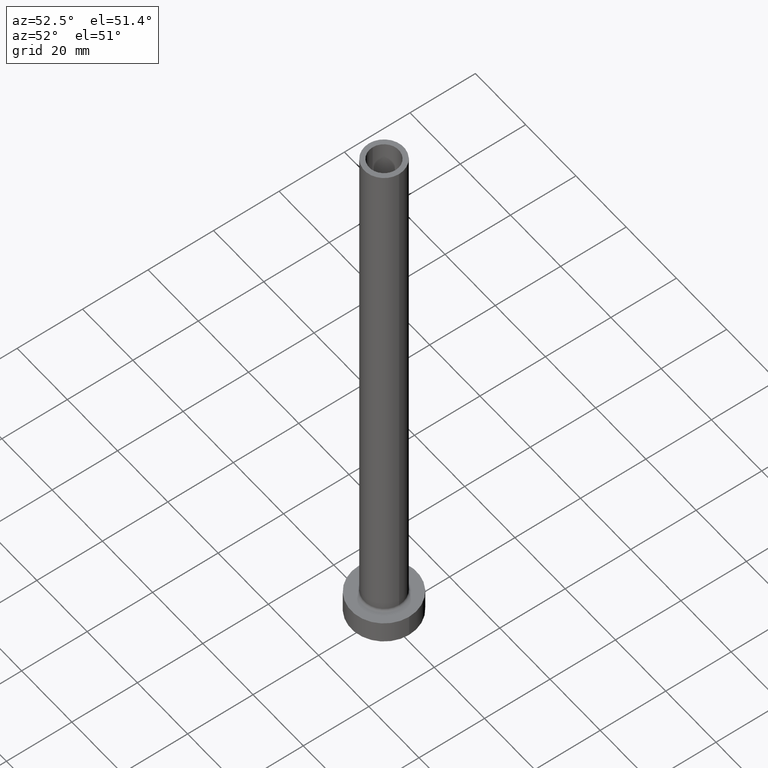
[diagram: clean part render]
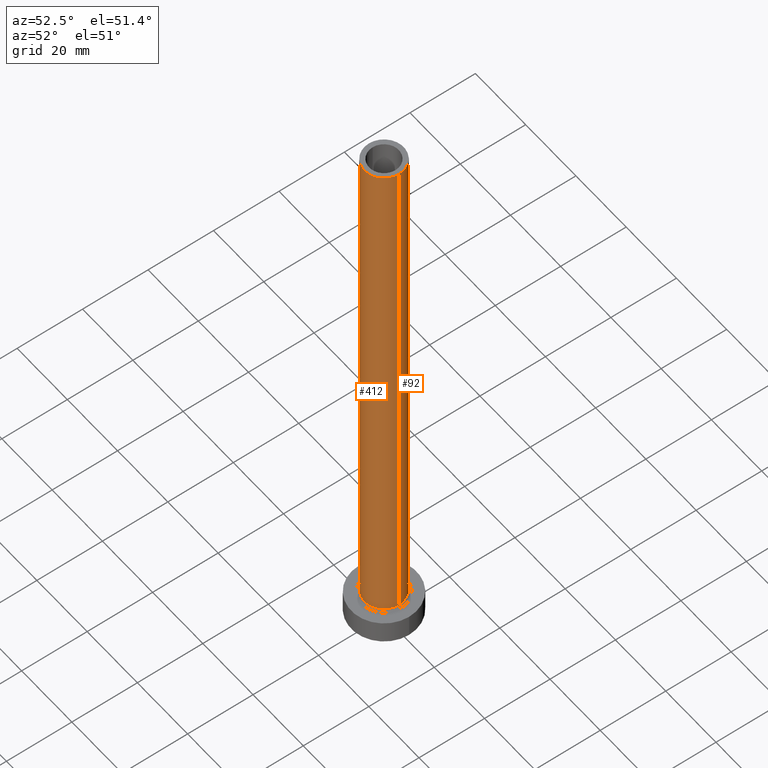
[diagram: same view with one multi-face feature highlighted, each face labeled with its STEP entity id]
A machine part, auxiliary view. The highlighted faces form ONE feature: a constant-radius fillet chain: 2 tangent blend faces with common blend radius 6 mm. The faces share edges in the B-rep.
Their STEP definitions:
[1] entity #92 (Cylinder):
#22 = CARTESIAN_POINT ( 'NONE',  ( 0.000000000000000000, 0.000000000000000000, 175.0000000000000284 ) ) ;
#51 = EDGE_CURVE ( 'NONE', #73, #442, #454, .T. ) ;
#53 = VERTEX_POINT ( 'NONE', #368 ) ;
#56 = EDGE_CURVE ( 'NONE', #73, #197, #424, .T. ) ;
#60 = CYLINDRICAL_SURFACE ( 'NONE', #455, 6.000000000000000888 ) ;
#73 = VERTEX_POINT ( 'NONE', #312 ) ;
#80 = EDGE_LOOP ( 'NONE', ( #432, #449, #377, #398 ) ) ;
#86 = LINE ( 'NONE', #397, #267 ) ;
#92 = ADVANCED_FACE ( 'NONE', ( #395 ), #60, .T. ) ;
#100 = EDGE_CURVE ( 'NONE', #197, #53, #154, .T. ) ;
#138 = CARTESIAN_POINT ( 'NONE',  ( 6.000000000000000888, 7.347880794884119736E-16, 7.700000000000012612 ) ) ;
#140 = VECTOR ( 'NONE', #461, 1000.000000000000000 ) ;
#154 = CIRCLE ( 'NONE', #415, 6.000000000000000888 ) ;
#171 = CARTESIAN_POINT ( 'NONE',  ( 6.000000000000000888, 7.347880794884119736E-16, 175.0000000000000284 ) ) ;
#197 = VERTEX_POINT ( 'NONE', #138 ) ;
#211 = DIRECTION ( 'NONE',  ( -1.000000000000000000, 0.000000000000000000, 0.000000000000000000 ) ) ;
#226 = DIRECTION ( 'NONE',  ( 1.000000000000000000, 0.000000000000000000, 0.000000000000000000 ) ) ;
#227 = DIRECTION ( 'NONE',  ( -0.000000000000000000, -0.000000000000000000, -1.000000000000000000 ) ) ;
#243 = CARTESIAN_POINT ( 'NONE',  ( -6.000000000000000888, 0.000000000000000000, 175.0000000000000284 ) ) ;
#267 = VECTOR ( 'NONE', #227, 1000.000000000000000 ) ;
#272 = DIRECTION ( 'NONE',  ( 0.000000000000000000, 0.000000000000000000, 1.000000000000000000 ) ) ;
#277 = DIRECTION ( 'NONE',  ( -0.000000000000000000, -0.000000000000000000, -1.000000000000000000 ) ) ;
#312 = CARTESIAN_POINT ( 'NONE',  ( 6.000000000000000888, 7.347880794884119736E-16, 175.0000000000000284 ) ) ;
#314 = CARTESIAN_POINT ( 'NONE',  ( 0.000000000000000000, 0.000000000000000000, 7.700000000000012612 ) ) ;
#315 = DIRECTION ( 'NONE',  ( 0.000000000000000000, 0.000000000000000000, 1.000000000000000000 ) ) ;
#337 = AXIS2_PLACEMENT_3D ( 'NONE', #22, #272, #226 ) ;
#364 = EDGE_CURVE ( 'NONE', #442, #53, #86, .T. ) ;
#368 = CARTESIAN_POINT ( 'NONE',  ( -6.000000000000000888, 0.000000000000000000, 7.700000000000012612 ) ) ;
#377 = ORIENTED_EDGE ( 'NONE', *, *, #100, .T. ) ;
#395 = FACE_OUTER_BOUND ( 'NONE', #80, .T. ) ;
#397 = CARTESIAN_POINT ( 'NONE',  ( -6.000000000000000888, 0.000000000000000000, 175.0000000000000284 ) ) ;
#398 = ORIENTED_EDGE ( 'NONE', *, *, #364, .F. ) ;
#415 = AXIS2_PLACEMENT_3D ( 'NONE', #314, #315, #421 ) ;
#421 = DIRECTION ( 'NONE',  ( 1.000000000000000000, 0.000000000000000000, 0.000000000000000000 ) ) ;
#424 = LINE ( 'NONE', #171, #140 ) ;
#426 = CARTESIAN_POINT ( 'NONE',  ( 0.000000000000000000, 0.000000000000000000, 175.0000000000000284 ) ) ;
#432 = ORIENTED_EDGE ( 'NONE', *, *, #51, .F. ) ;
#442 = VERTEX_POINT ( 'NONE', #243 ) ;
#449 = ORIENTED_EDGE ( 'NONE', *, *, #56, .T. ) ;
#454 = CIRCLE ( 'NONE', #337, 6.000000000000000888 ) ;
#455 = AXIS2_PLACEMENT_3D ( 'NONE', #426, #277, #211 ) ;
#461 = DIRECTION ( 'NONE',  ( -0.000000000000000000, -0.000000000000000000, -1.000000000000000000 ) ) ;
[2] entity #412 (Cylinder):
#16 = DIRECTION ( 'NONE',  ( 1.000000000000000000, 0.000000000000000000, 0.000000000000000000 ) ) ;
#53 = VERTEX_POINT ( 'NONE', #368 ) ;
#56 = EDGE_CURVE ( 'NONE', #73, #197, #424, .T. ) ;
#58 = CIRCLE ( 'NONE', #97, 6.000000000000000888 ) ;
#73 = VERTEX_POINT ( 'NONE', #312 ) ;
#86 = LINE ( 'NONE', #397, #267 ) ;
#97 = AXIS2_PLACEMENT_3D ( 'NONE', #102, #458, #114 ) ;
#102 = CARTESIAN_POINT ( 'NONE',  ( 0.000000000000000000, 0.000000000000000000, 175.0000000000000284 ) ) ;
#114 = DIRECTION ( 'NONE',  ( 1.000000000000000000, 0.000000000000000000, 0.000000000000000000 ) ) ;
#124 = CARTESIAN_POINT ( 'NONE',  ( 0.000000000000000000, 0.000000000000000000, 7.700000000000012612 ) ) ;
#134 = CYLINDRICAL_SURFACE ( 'NONE', #331, 6.000000000000000888 ) ;
#138 = CARTESIAN_POINT ( 'NONE',  ( 6.000000000000000888, 7.347880794884119736E-16, 7.700000000000012612 ) ) ;
#140 = VECTOR ( 'NONE', #461, 1000.000000000000000 ) ;
#148 = EDGE_CURVE ( 'NONE', #442, #73, #58, .T. ) ;
#152 = ORIENTED_EDGE ( 'NONE', *, *, #56, .F. ) ;
#159 = EDGE_LOOP ( 'NONE', ( #152, #186, #309, #287 ) ) ;
#171 = CARTESIAN_POINT ( 'NONE',  ( 6.000000000000000888, 7.347880794884119736E-16, 175.0000000000000284 ) ) ;
#186 = ORIENTED_EDGE ( 'NONE', *, *, #148, .F. ) ;
#196 = AXIS2_PLACEMENT_3D ( 'NONE', #124, #297, #16 ) ;
#197 = VERTEX_POINT ( 'NONE', #138 ) ;
#200 = CARTESIAN_POINT ( 'NONE',  ( 0.000000000000000000, 0.000000000000000000, 175.0000000000000284 ) ) ;
#227 = DIRECTION ( 'NONE',  ( -0.000000000000000000, -0.000000000000000000, -1.000000000000000000 ) ) ;
#243 = CARTESIAN_POINT ( 'NONE',  ( -6.000000000000000888, 0.000000000000000000, 175.0000000000000284 ) ) ;
#267 = VECTOR ( 'NONE', #227, 1000.000000000000000 ) ;
#269 = DIRECTION ( 'NONE',  ( -0.000000000000000000, -0.000000000000000000, -1.000000000000000000 ) ) ;
#287 = ORIENTED_EDGE ( 'NONE', *, *, #313, .T. ) ;
#297 = DIRECTION ( 'NONE',  ( 0.000000000000000000, 0.000000000000000000, 1.000000000000000000 ) ) ;
#306 = CIRCLE ( 'NONE', #196, 6.000000000000000888 ) ;
#309 = ORIENTED_EDGE ( 'NONE', *, *, #364, .T. ) ;
#312 = CARTESIAN_POINT ( 'NONE',  ( 6.000000000000000888, 7.347880794884119736E-16, 175.0000000000000284 ) ) ;
#313 = EDGE_CURVE ( 'NONE', #53, #197, #306, .T. ) ;
#331 = AXIS2_PLACEMENT_3D ( 'NONE', #200, #269, #338 ) ;
#338 = DIRECTION ( 'NONE',  ( -1.000000000000000000, 0.000000000000000000, 0.000000000000000000 ) ) ;
#364 = EDGE_CURVE ( 'NONE', #442, #53, #86, .T. ) ;
#368 = CARTESIAN_POINT ( 'NONE',  ( -6.000000000000000888, 0.000000000000000000, 7.700000000000012612 ) ) ;
#397 = CARTESIAN_POINT ( 'NONE',  ( -6.000000000000000888, 0.000000000000000000, 175.0000000000000284 ) ) ;
#412 = ADVANCED_FACE ( 'NONE', ( #413 ), #134, .T. ) ;
#413 = FACE_OUTER_BOUND ( 'NONE', #159, .T. ) ;
#424 = LINE ( 'NONE', #171, #140 ) ;
#442 = VERTEX_POINT ( 'NONE', #243 ) ;
#458 = DIRECTION ( 'NONE',  ( 0.000000000000000000, 0.000000000000000000, 1.000000000000000000 ) ) ;
#461 = DIRECTION ( 'NONE',  ( -0.000000000000000000, -0.000000000000000000, -1.000000000000000000 ) ) ;